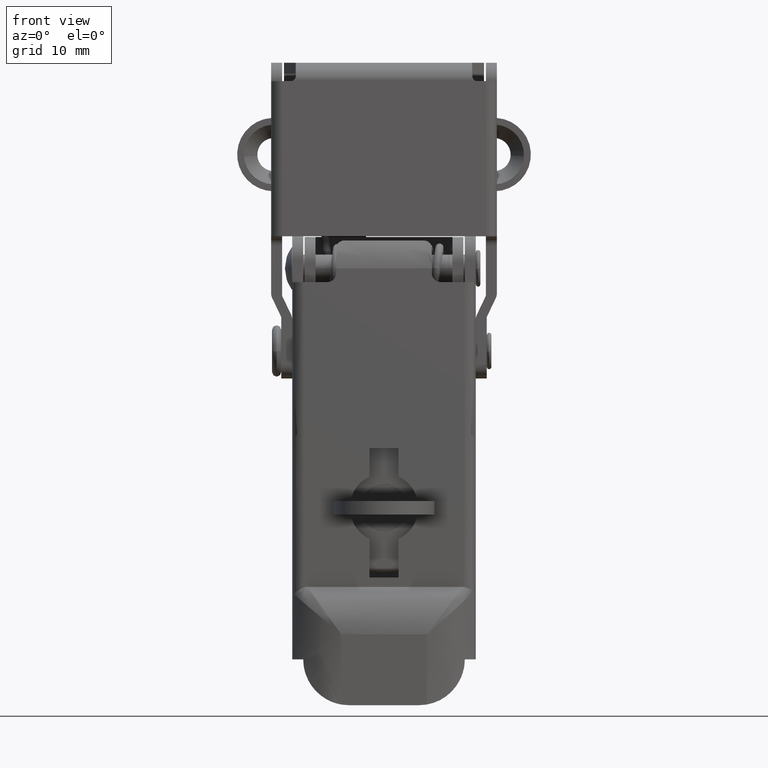
[diagram: clean part render]
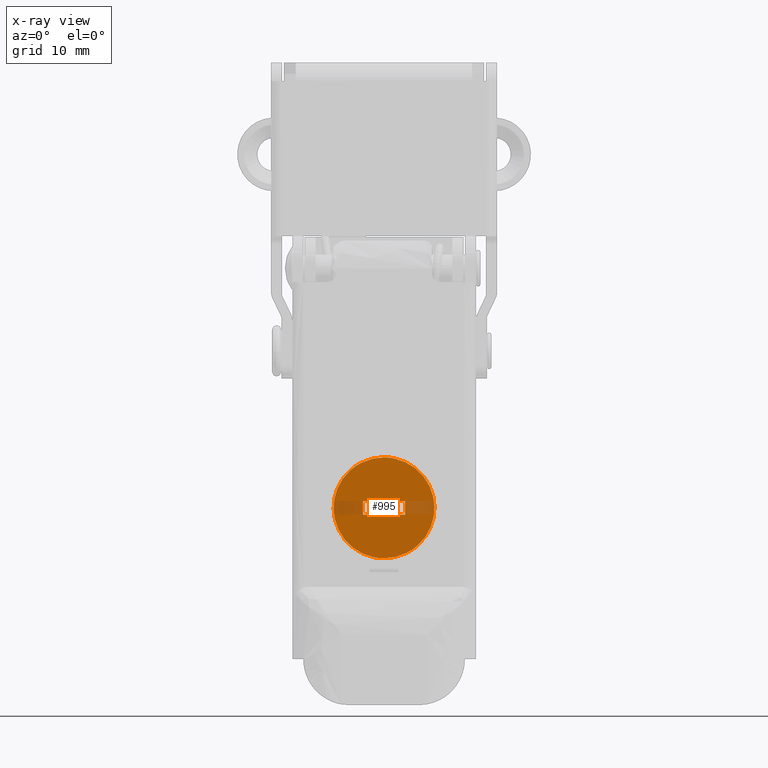
[diagram: x-ray — body ghosted, one internal face saturated and labeled with its STEP entity id]
A machine part, front view, then the same camera in x-ray: the body is ghosted and one INTERNAL B-rep face — a face not visible from any outside direction — is saturated and labeled: STEP entity #995.
In plain terms, the highlighted face is a freeform B-spline surface patch.
Its self-contained STEP definition (entity closure, byte-faithful):
#827=CARTESIAN_POINT('',(-2.299999999999345,-6.699999999999821,-16.750000000000000));
#828=VERTEX_POINT('',#827);
#829=CARTESIAN_POINT('',(-2.299999999999345,-6.699999999999821,-18.250000000000000));
#830=VERTEX_POINT('',#829);
#831=CARTESIAN_POINT('',(-2.299999999999345,-6.699999999999821,-16.750000000000000));
#832=CARTESIAN_POINT('',(-2.299999999999345,-6.699999999999821,-18.250000000000000));
#833=QUASI_UNIFORM_CURVE('',1,(#831,#832),.UNSPECIFIED.,.F.,.U.);
#834=EDGE_CURVE('',#828,#830,#833,.T.);
#855=CARTESIAN_POINT('',(2.300000000000655,-6.699999999999821,-18.250000000000000));
#856=VERTEX_POINT('',#855);
#857=CARTESIAN_POINT('',(2.300000000000655,-6.699999999999821,-16.750000000000000));
#858=VERTEX_POINT('',#857);
#859=CARTESIAN_POINT('',(2.300000000000655,-6.699999999999821,-18.250000000000000));
#860=CARTESIAN_POINT('',(2.300000000000655,-6.699999999999821,-16.750000000000000));
#861=QUASI_UNIFORM_CURVE('',1,(#859,#860),.UNSPECIFIED.,.F.,.U.);
#862=EDGE_CURVE('',#856,#858,#861,.T.);
#883=CARTESIAN_POINT('',(-2.299999999999345,-6.699999999999821,-18.250000000000000));
#884=CARTESIAN_POINT('',(2.300000000000655,-6.699999999999821,-18.250000000000000));
#885=QUASI_UNIFORM_CURVE('',1,(#883,#884),.UNSPECIFIED.,.F.,.U.);
#886=EDGE_CURVE('',#830,#856,#885,.T.);
#904=CARTESIAN_POINT('',(-2.299999999999345,-6.699999999999821,-16.750000000000000));
#905=CARTESIAN_POINT('',(2.300000000000655,-6.699999999999821,-16.750000000000000));
#906=QUASI_UNIFORM_CURVE('',1,(#904,#905),.UNSPECIFIED.,.F.,.U.);
#907=EDGE_CURVE('',#828,#858,#906,.T.);
#918=CARTESIAN_POINT('',(-6.044649155981363,-6.699999999999821,-23.549449978679871));
#919=CARTESIAN_POINT('',(6.044649155981361,-6.699999999999821,-23.549449978679871));
#920=CARTESIAN_POINT('',(-6.044649155981363,-6.699999999999821,-11.450549726277149));
#921=CARTESIAN_POINT('',(6.044649155981361,-6.699999999999821,-11.450549726277149));
#922=B_SPLINE_SURFACE_WITH_KNOTS('',1,1,((#918,#920),(#919,#921)),.UNSPECIFIED.,.F.,.F.,.U.,(2,2),(2,2),(0.0,12.089298311962720),(0.0,12.098900252402720),.UNSPECIFIED.);
#923=CARTESIAN_POINT('',(-3.644409887129510,-6.699999999999400,-13.380743201183931));
#924=VERTEX_POINT('',#923);
#925=CARTESIAN_POINT('',(0.0,-6.699999999999821,-23.0));
#926=VERTEX_POINT('',#925);
#927=CARTESIAN_POINT('',(-3.644409887129511,-6.699999999999400,-13.380743201183927));
#928=CARTESIAN_POINT('',(-5.499999999999984,-6.699999999999436,-15.022430351096162));
#929=CARTESIAN_POINT('',(-5.499999999999989,-6.699999999999531,-17.500000000000011));
#930=CARTESIAN_POINT('',(-5.499999999999997,-6.699999999999742,-23.000000000000007));
#931=CARTESIAN_POINT('',(0.0,-6.699999999999821,-23.0));
#939=(BOUNDED_CURVE()B_SPLINE_CURVE(2,(#927,#928,#929,#930,#931),.UNSPECIFIED.,.F.,.U.)B_SPLINE_CURVE_WITH_KNOTS((3,2,3),(0.615779874198418,0.750000000000000,1.0),.UNSPECIFIED.)CURVE()GEOMETRIC_REPRESENTATION_ITEM()RATIONAL_B_SPLINE_CURVE((0.854350160620634,0.842751341297712,1.0,0.707106781186548,1.0))REPRESENTATION_ITEM(''));
#940=EDGE_CURVE('',#924,#926,#939,.T.);
#941=ORIENTED_EDGE('',*,*,#940,.F.);
#942=CARTESIAN_POINT('',(0.0,-6.699999999999821,-12.0));
#943=VERTEX_POINT('',#942);
#944=CARTESIAN_POINT('',(0.0,-6.699999999999821,-12.0));
#945=CARTESIAN_POINT('',(-2.083763309206935,-6.699999999999611,-12.000000000000016));
#946=CARTESIAN_POINT('',(-3.644409887129511,-6.699999999999400,-13.380743201183927));
#954=(BOUNDED_CURVE()B_SPLINE_CURVE(2,(#944,#945,#946),.UNSPECIFIED.,.F.,.U.)B_SPLINE_CURVE_WITH_KNOTS((3,3),(0.500000000000000,0.615779874198418),.UNSPECIFIED.)CURVE()GEOMETRIC_REPRESENTATION_ITEM()RATIONAL_B_SPLINE_CURVE((1.0,0.864355439888836,0.854350160620634))REPRESENTATION_ITEM(''));
#955=EDGE_CURVE('',#943,#924,#954,.T.);
#956=ORIENTED_EDGE('',*,*,#955,.F.);
#957=CARTESIAN_POINT('',(3.644409887129510,-6.699999999999400,-21.619256798816071));
#958=VERTEX_POINT('',#957);
#959=CARTESIAN_POINT('',(3.644409887129511,-6.699999999999400,-21.619256798816075));
#960=CARTESIAN_POINT('',(5.499999999999988,-6.699999999999437,-19.977569648903849));
#961=CARTESIAN_POINT('',(5.499999999999990,-6.699999999999530,-17.499999999999989));
#962=CARTESIAN_POINT('',(5.499999999999997,-6.699999999999742,-11.999999999999998));
#963=CARTESIAN_POINT('',(0.0,-6.699999999999821,-12.0));
#971=(BOUNDED_CURVE()B_SPLINE_CURVE(2,(#959,#960,#961,#962,#963),.UNSPECIFIED.,.F.,.U.)B_SPLINE_CURVE_WITH_KNOTS((3,2,3),(0.115779874198418,0.250000000000000,0.500000000000000),.UNSPECIFIED.)CURVE()GEOMETRIC_REPRESENTATION_ITEM()RATIONAL_B_SPLINE_CURVE((0.854350160620634,0.842751341297712,1.0,0.707106781186548,1.0))REPRESENTATION_ITEM(''));
#972=EDGE_CURVE('',#958,#943,#971,.T.);
#973=ORIENTED_EDGE('',*,*,#972,.F.);
#974=CARTESIAN_POINT('',(0.0,-6.699999999999821,-23.0));
#975=CARTESIAN_POINT('',(2.083763309206935,-6.699999999999611,-22.999999999999989));
#976=CARTESIAN_POINT('',(3.644409887129511,-6.699999999999400,-21.619256798816075));
#984=(BOUNDED_CURVE()B_SPLINE_CURVE(2,(#974,#975,#976),.UNSPECIFIED.,.F.,.U.)B_SPLINE_CURVE_WITH_KNOTS((3,3),(0.0,0.115779874198418),.UNSPECIFIED.)CURVE()GEOMETRIC_REPRESENTATION_ITEM()RATIONAL_B_SPLINE_CURVE((1.0,0.864355439888836,0.854350160620634))REPRESENTATION_ITEM(''));
#985=EDGE_CURVE('',#926,#958,#984,.T.);
#986=ORIENTED_EDGE('',*,*,#985,.F.);
#987=EDGE_LOOP('',(#941,#956,#973,#986));
#988=FACE_OUTER_BOUND('',#987,.T.);
#989=ORIENTED_EDGE('',*,*,#907,.F.);
#990=ORIENTED_EDGE('',*,*,#834,.T.);
#991=ORIENTED_EDGE('',*,*,#886,.T.);
#992=ORIENTED_EDGE('',*,*,#862,.T.);
#993=EDGE_LOOP('',(#989,#990,#991,#992));
#994=FACE_BOUND('',#993,.T.);
#995=ADVANCED_FACE('',(#988,#994),#922,.F.);